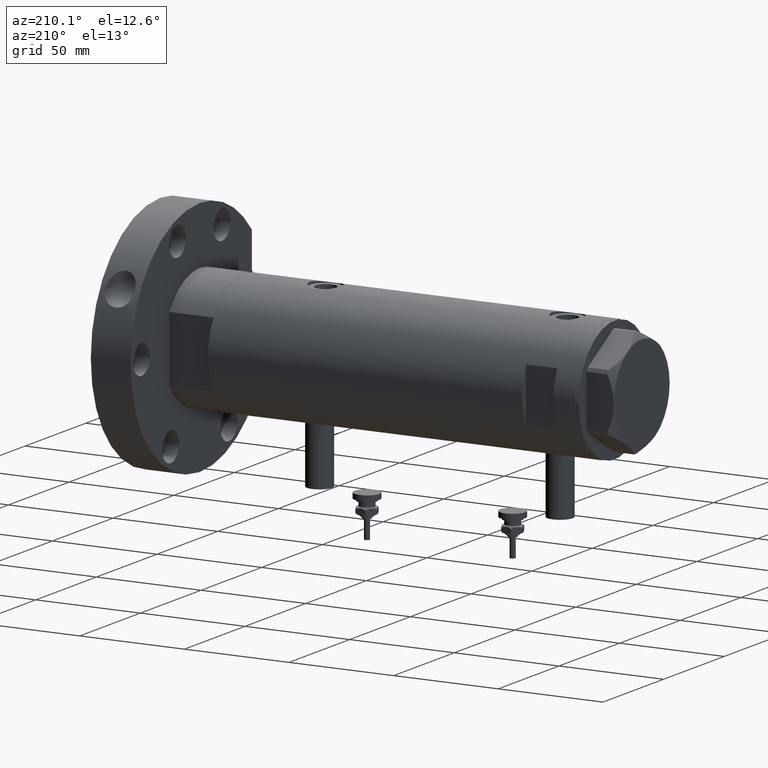
[diagram: clean part render]
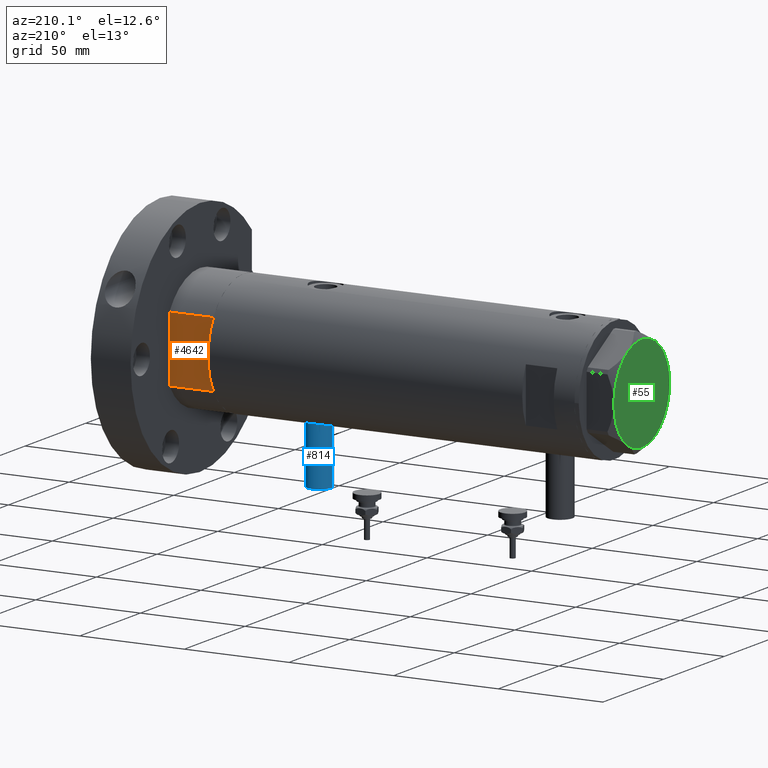
[diagram: same view with three faces highlighted in distinct colors, each labeled with its STEP entity id]
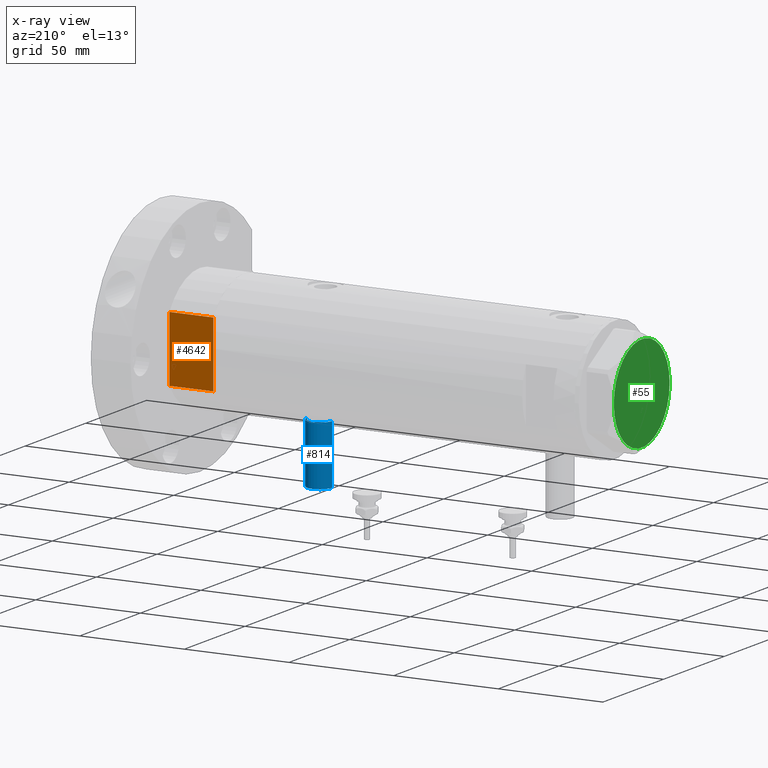
[diagram: x-ray of the same camera — body ghosted, the three highlighted faces saturated]
A machine part, auxiliary view with three faces highlighted in distinct colors.
The next image is the same camera in x-ray (body ghosted, the three faces saturated) — at least one of them is partly hidden behind the body in this view.
Their STEP definitions:

[orange] entity #4642 — the highlighted planar face has unit normal (0, -1, -0).
#120 = CARTESIAN_POINT ( 'NONE',  ( -7.141428428542853091, 25.00000000000000000, 0.000000000000000000 ) ) ;
#267 = ORIENTED_EDGE ( 'NONE', *, *, #822, .T. ) ;
#564 = VERTEX_POINT ( 'NONE', #985 ) ;
#588 = VERTEX_POINT ( 'NONE', #5234 ) ;
#740 = ORIENTED_EDGE ( 'NONE', *, *, #3252, .F. ) ;
#822 = EDGE_CURVE ( 'NONE', #588, #564, #1412, .T. ) ;
#985 = CARTESIAN_POINT ( 'NONE',  ( 15.66045976336583045, 24.99999999999999645, 20.99999999999999645 ) ) ;
#991 = VECTOR ( 'NONE', #4624, 1000.000000000000000 ) ;
#1235 = VECTOR ( 'NONE', #6782, 1000.000000000000000 ) ;
#1294 = EDGE_CURVE ( 'NONE', #2614, #4690, #5671, .T. ) ;
#1408 = VERTEX_POINT ( 'NONE', #3052 ) ;
#1412 = LINE ( 'NONE', #3121, #5369 ) ;
#1476 = ORIENTED_EDGE ( 'NONE', *, *, #1294, .F. ) ;
#2224 = CARTESIAN_POINT ( 'NONE',  ( -15.66045976336583401, 25.00000000000000000, 0.000000000000000000 ) ) ;
#2300 = ORIENTED_EDGE ( 'NONE', *, *, #3960, .T. ) ;
#2508 = CARTESIAN_POINT ( 'NONE',  ( -15.66045976336583401, 25.00000000000000000, 0.000000000000000000 ) ) ;
#2614 = VERTEX_POINT ( 'NONE', #120 ) ;
#2957 = DIRECTION ( 'NONE',  ( 1.000000000000000000, 0.000000000000000000, 0.000000000000000000 ) ) ;
#3052 = CARTESIAN_POINT ( 'NONE',  ( 15.66045976336582690, 25.00000000000000000, 0.000000000000000000 ) ) ;
#3083 = CARTESIAN_POINT ( 'NONE',  ( 7.141428428542853091, 25.00000000000000000, 0.000000000000000000 ) ) ;
#3121 = CARTESIAN_POINT ( 'NONE',  ( -15.66045976336583401, 25.00000000000000000, 21.00000000000000000 ) ) ;
#3252 = EDGE_CURVE ( 'NONE', #7256, #2614, #7468, .T. ) ;
#3358 = FACE_OUTER_BOUND ( 'NONE', #4745, .T. ) ;
#3436 = LINE ( 'NONE', #6352, #4177 ) ;
#3687 = VECTOR ( 'NONE', #2957, 1000.000000000000000 ) ;
#3892 = ORIENTED_EDGE ( 'NONE', *, *, #4653, .F. ) ;
#3960 = EDGE_CURVE ( 'NONE', #7256, #588, #6672, .T. ) ;
#4014 = PLANE ( 'NONE',  #6867 ) ;
#4164 = ORIENTED_EDGE ( 'NONE', *, *, #6633, .F. ) ;
#4177 = VECTOR ( 'NONE', #5775, 1000.000000000000000 ) ;
#4236 = DIRECTION ( 'NONE',  ( 1.000000000000000000, 0.000000000000000000, 0.000000000000000000 ) ) ;
#4621 = DIRECTION ( 'NONE',  ( 0.000000000000000000, -0.000000000000000000, -1.000000000000000000 ) ) ;
#4624 = DIRECTION ( 'NONE',  ( 1.000000000000000000, 0.000000000000000000, 0.000000000000000000 ) ) ;
#4642 = ADVANCED_FACE ( 'NONE', ( #3358 ), #4014, .F. ) ;
#4653 = EDGE_CURVE ( 'NONE', #1408, #564, #3436, .T. ) ;
#4690 = VERTEX_POINT ( 'NONE', #3083 ) ;
#4745 = EDGE_LOOP ( 'NONE', ( #267, #3892, #4164, #1476, #740, #2300 ) ) ;
#4894 = LINE ( 'NONE', #2508, #7547 ) ;
#5234 = CARTESIAN_POINT ( 'NONE',  ( -15.66045976336583045, 24.99999999999999645, 21.00000000000000355 ) ) ;
#5369 = VECTOR ( 'NONE', #5549, 1000.000000000000000 ) ;
#5549 = DIRECTION ( 'NONE',  ( 1.000000000000000000, 0.000000000000000000, 0.000000000000000000 ) ) ;
#5669 = CARTESIAN_POINT ( 'NONE',  ( -15.66045976336583401, 25.00000000000000000, 0.000000000000000000 ) ) ;
#5671 = LINE ( 'NONE', #2224, #991 ) ;
#5775 = DIRECTION ( 'NONE',  ( -0.000000000000000000, -0.000000000000000000, 1.000000000000000000 ) ) ;
#5914 = CARTESIAN_POINT ( 'NONE',  ( -15.66045976336583401, 25.00000000000000000, 0.000000000000000000 ) ) ;
#6212 = CARTESIAN_POINT ( 'NONE',  ( -15.66045976336583401, 25.00000000000000000, 0.000000000000000000 ) ) ;
#6352 = CARTESIAN_POINT ( 'NONE',  ( 15.66045976336583401, 25.00000000000000000, 0.000000000000000000 ) ) ;
#6633 = EDGE_CURVE ( 'NONE', #4690, #1408, #4894, .T. ) ;
#6672 = LINE ( 'NONE', #6212, #1235 ) ;
#6782 = DIRECTION ( 'NONE',  ( -0.000000000000000000, -0.000000000000000000, 1.000000000000000000 ) ) ;
#6867 = AXIS2_PLACEMENT_3D ( 'NONE', #5669, #7537, #4621 ) ;
#7256 = VERTEX_POINT ( 'NONE', #7496 ) ;
#7468 = LINE ( 'NONE', #5914, #3687 ) ;
#7496 = CARTESIAN_POINT ( 'NONE',  ( -15.66045976336583401, 25.00000000000000000, 0.000000000000000000 ) ) ;
#7537 = DIRECTION ( 'NONE',  ( 0.000000000000000000, -1.000000000000000000, 0.000000000000000000 ) ) ;
#7547 = VECTOR ( 'NONE', #4236, 1000.000000000000000 ) ;

[blue] entity #814 — the highlighted cylindrical surface (edge-blend (fillet) strip) has radius 6 mm, axis along (0, 0, 1).
#6 = AXIS2_PLACEMENT_3D ( 'NONE', #4482, #5678, #3222 ) ;
#275 = DIRECTION ( 'NONE',  ( 0.000000000000000000, 0.000000000000000000, 1.000000000000000000 ) ) ;
#725 = EDGE_CURVE ( 'NONE', #2513, #3370, #3523, .T. ) ;
#761 = DIRECTION ( 'NONE',  ( 0.000000000000000000, 0.000000000000000000, -1.000000000000000000 ) ) ;
#778 = CARTESIAN_POINT ( 'NONE',  ( -56.60000000000000142, 7.347880794884122694E-16, -45.29999999999999005 ) ) ;
#814 = ADVANCED_FACE ( 'NONE', ( #3621 ), #5959, .T. ) ;
#844 = CARTESIAN_POINT ( 'NONE',  ( -56.60000000000000142, 0.000000000000000000, -51.29999999999999716 ) ) ;
#1056 = EDGE_LOOP ( 'NONE', ( #2672, #2793, #3591, #7299 ) ) ;
#1356 = CARTESIAN_POINT ( 'NONE',  ( -56.60000000000000142, 0.000000000000000000, -57.30000000000000426 ) ) ;
#1799 = VECTOR ( 'NONE', #2887, 1000.000000000000000 ) ;
#1921 = AXIS2_PLACEMENT_3D ( 'NONE', #844, #6170, #275 ) ;
#2513 = VERTEX_POINT ( 'NONE', #7445 ) ;
#2672 = ORIENTED_EDGE ( 'NONE', *, *, #5553, .F. ) ;
#2793 = ORIENTED_EDGE ( 'NONE', *, *, #725, .T. ) ;
#2887 = DIRECTION ( 'NONE',  ( 1.000000000000000000, -0.000000000000000000, -0.000000000000000000 ) ) ;
#2950 = DIRECTION ( 'NONE',  ( 1.000000000000000000, -0.000000000000000000, -0.000000000000000000 ) ) ;
#3222 = DIRECTION ( 'NONE',  ( 0.000000000000000000, 0.000000000000000000, 1.000000000000000000 ) ) ;
#3236 = DIRECTION ( 'NONE',  ( 1.000000000000000000, -0.000000000000000000, -0.000000000000000000 ) ) ;
#3370 = VERTEX_POINT ( 'NONE', #5877 ) ;
#3409 = VECTOR ( 'NONE', #2950, 1000.000000000000000 ) ;
#3523 = LINE ( 'NONE', #778, #3409 ) ;
#3591 = ORIENTED_EDGE ( 'NONE', *, *, #3948, .T. ) ;
#3621 = FACE_OUTER_BOUND ( 'NONE', #1056, .T. ) ;
#3786 = AXIS2_PLACEMENT_3D ( 'NONE', #4813, #3236, #761 ) ;
#3869 = VERTEX_POINT ( 'NONE', #1356 ) ;
#3948 = EDGE_CURVE ( 'NONE', #3370, #6981, #5879, .T. ) ;
#4482 = CARTESIAN_POINT ( 'NONE',  ( -28.30000000000000071, 0.000000000000000000, -51.29999999999999716 ) ) ;
#4618 = LINE ( 'NONE', #5803, #1799 ) ;
#4813 = CARTESIAN_POINT ( 'NONE',  ( -56.60000000000000142, 0.000000000000000000, -51.29999999999999716 ) ) ;
#5220 = CIRCLE ( 'NONE', #1921, 6.000000000000005329 ) ;
#5553 = EDGE_CURVE ( 'NONE', #2513, #3869, #5220, .T. ) ;
#5678 = DIRECTION ( 'NONE',  ( -1.000000000000000000, 0.000000000000000000, 0.000000000000000000 ) ) ;
#5803 = CARTESIAN_POINT ( 'NONE',  ( -56.60000000000000142, 0.000000000000000000, -57.30000000000000426 ) ) ;
#5877 = CARTESIAN_POINT ( 'NONE',  ( -28.30000000000000071, 7.347880794884119736E-16, -45.29999999999999005 ) ) ;
#5879 = CIRCLE ( 'NONE', #6, 6.000000000000005329 ) ;
#5959 = CYLINDRICAL_SURFACE ( 'NONE', #3786, 6.000000000000005329 ) ;
#6170 = DIRECTION ( 'NONE',  ( -1.000000000000000000, 0.000000000000000000, 0.000000000000000000 ) ) ;
#6606 = CARTESIAN_POINT ( 'NONE',  ( -28.30000000000000071, 0.000000000000000000, -57.30000000000000426 ) ) ;
#6866 = EDGE_CURVE ( 'NONE', #3869, #6981, #4618, .T. ) ;
#6981 = VERTEX_POINT ( 'NONE', #6606 ) ;
#7299 = ORIENTED_EDGE ( 'NONE', *, *, #6866, .F. ) ;
#7445 = CARTESIAN_POINT ( 'NONE',  ( -56.60000000000000142, 7.347880794884119736E-16, -45.29999999999999005 ) ) ;

[green] entity #55 — the highlighted planar face has unit normal (-1, -0, 0).
#55 = ADVANCED_FACE ( 'NONE', ( #1029 ), #412, .T. ) ;
#108 = ORIENTED_EDGE ( 'NONE', *, *, #909, .T. ) ;
#155 = EDGE_CURVE ( 'NONE', #6034, #6466, #6347, .T. ) ;
#266 = AXIS2_PLACEMENT_3D ( 'NONE', #7292, #4990, #2090 ) ;
#301 = CARTESIAN_POINT ( 'NONE',  ( 0.000000000000000000, 0.000000000000000000, 13.00000000000000000 ) ) ;
#412 = PLANE ( 'NONE',  #593 ) ;
#472 = DIRECTION ( 'NONE',  ( 1.000000000000000000, 0.000000000000000000, 0.000000000000000000 ) ) ;
#478 = AXIS2_PLACEMENT_3D ( 'NONE', #5046, #1561, #2810 ) ;
#573 = CARTESIAN_POINT ( 'NONE',  ( -11.49999999999990585, -19.91858428704219364, 13.00000000000000000 ) ) ;
#593 = AXIS2_PLACEMENT_3D ( 'NONE', #4458, #2737, #5690 ) ;
#622 = AXIS2_PLACEMENT_3D ( 'NONE', #3368, #5147, #472 ) ;
#909 = EDGE_CURVE ( 'NONE', #2184, #2910, #2921, .T. ) ;
#1029 = FACE_OUTER_BOUND ( 'NONE', #2229, .T. ) ;
#1039 = CARTESIAN_POINT ( 'NONE',  ( 0.000000000000000000, 0.000000000000000000, 13.00000000000000000 ) ) ;
#1303 = ORIENTED_EDGE ( 'NONE', *, *, #6673, .T. ) ;
#1388 = EDGE_CURVE ( 'NONE', #6466, #4224, #1598, .T. ) ;
#1561 = DIRECTION ( 'NONE',  ( 0.000000000000000000, 0.000000000000000000, 1.000000000000000000 ) ) ;
#1598 = CIRCLE ( 'NONE', #6963, 23.00000000000004619 ) ;
#1725 = VERTEX_POINT ( 'NONE', #4470 ) ;
#1992 = DIRECTION ( 'NONE',  ( 1.000000000000000000, 0.000000000000000000, 0.000000000000000000 ) ) ;
#2090 = DIRECTION ( 'NONE',  ( 1.000000000000000000, 0.000000000000000000, 0.000000000000000000 ) ) ;
#2184 = VERTEX_POINT ( 'NONE', #7167 ) ;
#2229 = EDGE_LOOP ( 'NONE', ( #4139, #3125, #5760, #2536, #108, #1303 ) ) ;
#2352 = EDGE_CURVE ( 'NONE', #4224, #1725, #7225, .T. ) ;
#2408 = CIRCLE ( 'NONE', #6321, 23.00000000000004619 ) ;
#2536 = ORIENTED_EDGE ( 'NONE', *, *, #2540, .T. ) ;
#2540 = EDGE_CURVE ( 'NONE', #1725, #2184, #4776, .T. ) ;
#2552 = DIRECTION ( 'NONE',  ( 1.000000000000000000, 0.000000000000000000, 0.000000000000000000 ) ) ;
#2737 = DIRECTION ( 'NONE',  ( 0.000000000000000000, 0.000000000000000000, 1.000000000000000000 ) ) ;
#2810 = DIRECTION ( 'NONE',  ( 1.000000000000000000, 0.000000000000000000, 0.000000000000000000 ) ) ;
#2877 = CARTESIAN_POINT ( 'NONE',  ( 11.50000000000018296, -19.91858428704203732, 13.00000000000000000 ) ) ;
#2910 = VERTEX_POINT ( 'NONE', #573 ) ;
#2921 = CIRCLE ( 'NONE', #5622, 23.00000000000004619 ) ;
#3125 = ORIENTED_EDGE ( 'NONE', *, *, #1388, .T. ) ;
#3368 = CARTESIAN_POINT ( 'NONE',  ( 0.000000000000000000, 0.000000000000000000, 13.00000000000000000 ) ) ;
#4139 = ORIENTED_EDGE ( 'NONE', *, *, #155, .T. ) ;
#4224 = VERTEX_POINT ( 'NONE', #7035 ) ;
#4458 = CARTESIAN_POINT ( 'NONE',  ( 0.000000000000000000, 0.000000000000000000, 13.00000000000000000 ) ) ;
#4470 = CARTESIAN_POINT ( 'NONE',  ( -11.50000000000004441, 19.91858428704211548, 13.00000000000000000 ) ) ;
#4776 = CIRCLE ( 'NONE', #622, 23.00000000000004619 ) ;
#4990 = DIRECTION ( 'NONE',  ( 0.000000000000000000, 0.000000000000000000, 1.000000000000000000 ) ) ;
#5046 = CARTESIAN_POINT ( 'NONE',  ( 0.000000000000000000, 0.000000000000000000, 13.00000000000000000 ) ) ;
#5147 = DIRECTION ( 'NONE',  ( 0.000000000000000000, 0.000000000000000000, 1.000000000000000000 ) ) ;
#5462 = DIRECTION ( 'NONE',  ( 0.000000000000000000, 0.000000000000000000, 1.000000000000000000 ) ) ;
#5622 = AXIS2_PLACEMENT_3D ( 'NONE', #301, #7229, #1992 ) ;
#5690 = DIRECTION ( 'NONE',  ( 1.000000000000000000, 0.000000000000000000, -0.000000000000000000 ) ) ;
#5760 = ORIENTED_EDGE ( 'NONE', *, *, #2352, .T. ) ;
#6034 = VERTEX_POINT ( 'NONE', #2877 ) ;
#6309 = DIRECTION ( 'NONE',  ( 0.000000000000000000, 0.000000000000000000, 1.000000000000000000 ) ) ;
#6321 = AXIS2_PLACEMENT_3D ( 'NONE', #1039, #6309, #7464 ) ;
#6347 = CIRCLE ( 'NONE', #478, 23.00000000000004619 ) ;
#6421 = CARTESIAN_POINT ( 'NONE',  ( 0.000000000000000000, 0.000000000000000000, 13.00000000000000000 ) ) ;
#6466 = VERTEX_POINT ( 'NONE', #7539 ) ;
#6673 = EDGE_CURVE ( 'NONE', #2910, #6034, #2408, .T. ) ;
#6963 = AXIS2_PLACEMENT_3D ( 'NONE', #6421, #5462, #2552 ) ;
#7035 = CARTESIAN_POINT ( 'NONE',  ( 11.49999999999990408, 19.91858428704219364, 13.00000000000000000 ) ) ;
#7167 = CARTESIAN_POINT ( 'NONE',  ( -23.00000000000004619, -8.112498833180673323E-14, 13.00000000000000000 ) ) ;
#7225 = CIRCLE ( 'NONE', #266, 23.00000000000004619 ) ;
#7229 = DIRECTION ( 'NONE',  ( 0.000000000000000000, 0.000000000000000000, 1.000000000000000000 ) ) ;
#7292 = CARTESIAN_POINT ( 'NONE',  ( 0.000000000000000000, 0.000000000000000000, 13.00000000000000000 ) ) ;
#7464 = DIRECTION ( 'NONE',  ( 1.000000000000000000, 0.000000000000000000, 0.000000000000000000 ) ) ;
#7539 = CARTESIAN_POINT ( 'NONE',  ( 22.99999999999995026, 2.373657066004705010E-13, 13.00000000000000000 ) ) ;